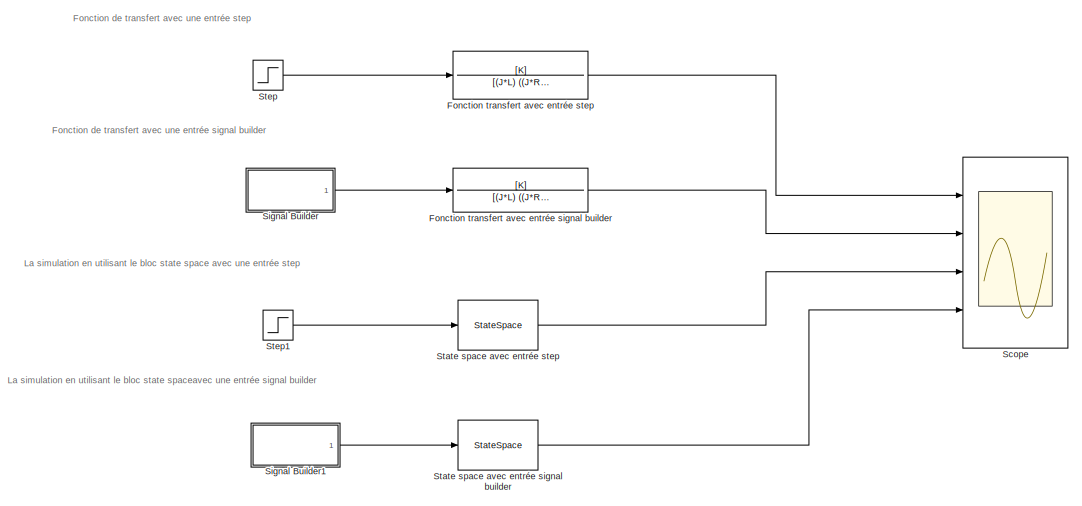
[diagram: root canvas - part 1/2, full width, top band]
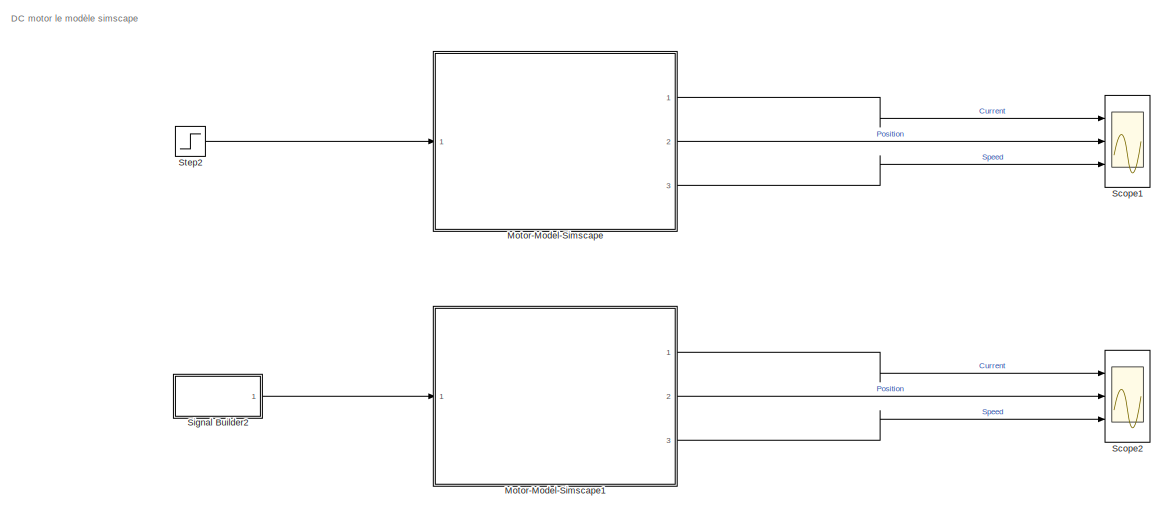
[diagram: root canvas - part 2/2, full width, bottom band]
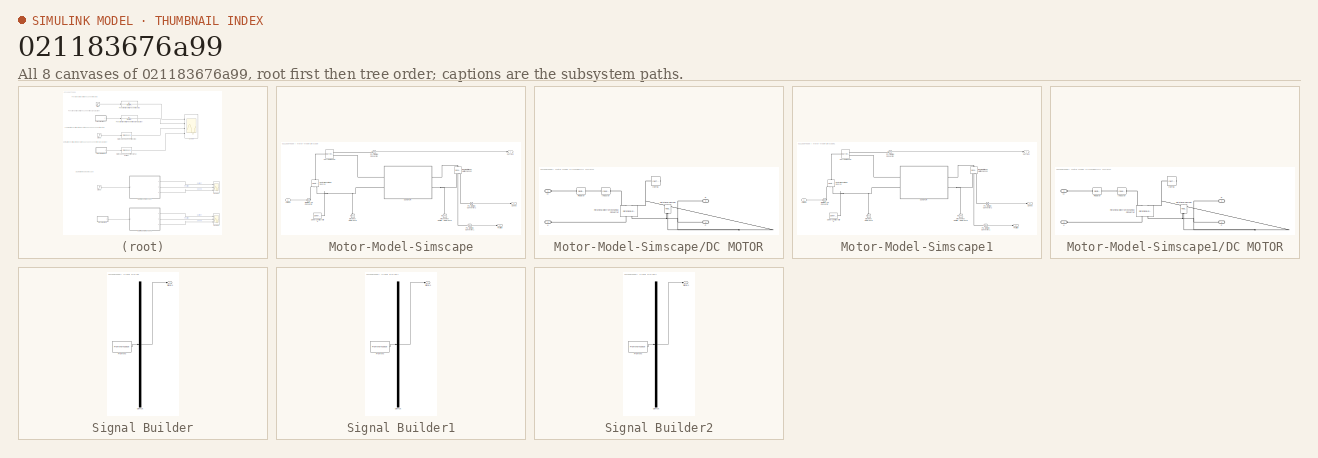
[diagram: thumbnail index - all 8 canvases of the model, root first then tree order]
MODEL slx_021183676a99
KIND model
CONFIG AbsTol = auto
CONFIG EnableMultiTasking = off
CONFIG FixedStep = auto
CONFIG MaxStep = auto
CONFIG MinStep = auto
CONFIG RelTol = 1e-3
CONFIG SampleTimeConstraint = Unconstrained
CONFIG Solver = VariableStepAuto
CONFIG SolverName = VariableStepAuto
CONFIG StartTime = 0.0
CONFIG StopTime = 10.0
BLOCK [TransferFcn] Fonction transfert avec entrée signal builder
  Denominator = [(J*L)  ((J*R)+(b*L))  ((b*R)+(K.^2))]
  Numerator = [K]
BLOCK [TransferFcn] Fonction transfert avec entrée step
  Denominator = [(J*L)  ((J*R)+(b*L))  ((b*R)+(K.^2))]
  Numerator = [K]
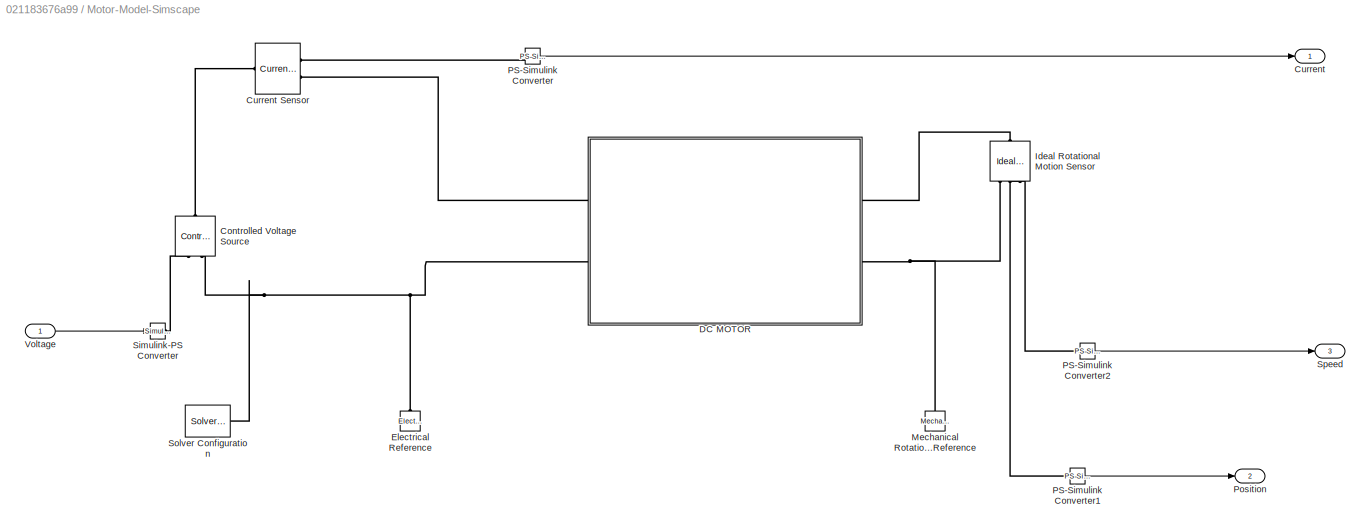
BLOCK [SubSystem] Motor-Model-Simscape
  Ports = [1, 3]
  RequestExecContextInheritance = off
BLOCK [Reference] Motor-Model-Simscape/Controlled Voltage Source  REF=fl_lib/Electrical/Electrical Sources/Controlled Voltage
Source
  NameLocation = right
  Ports = [0, 0, 0, 0, 0, 1, 2]
  SourceBlock = fl_lib/Electrical/Electrical Sources/Controlled Voltage\nSource
  SourceProductBaseCode = SS
  SourceType = Controlled Voltage\nSource
BLOCK [Outport] Motor-Model-Simscape/Current
BLOCK [Reference] Motor-Model-Simscape/Current Sensor  REF=fl_lib/Electrical/Electrical Sensors/Current Sensor
  Ports = [0, 0, 0, 0, 0, 1, 2]
  SourceBlock = fl_lib/Electrical/Electrical Sensors/Current Sensor
  SourceProductBaseCode = SS
  SourceType = Current Sensor
BLOCK [SubSystem] Motor-Model-Simscape/DC MOTOR
  Ports = [0, 0, 0, 0, 0, 2, 2]
  RequestExecContextInheritance = off
BLOCK [PMIOPort] Motor-Model-Simscape/DC MOTOR/C
  Port = 4
  Side = Right
BLOCK [Reference] Motor-Model-Simscape/DC MOTOR/Inductor  REF=fl_lib/Electrical/Electrical Elements/Inductor
  Ports = [0, 0, 0, 0, 0, 1, 1]
  SourceBlock = fl_lib/Electrical/Electrical Elements/Inductor
  SourceProductBaseCode = SS
  SourceType = Inductor
BLOCK [Reference] Motor-Model-Simscape/DC MOTOR/Inertia  REF=fl_lib/Mechanical/Rotational Elements/Inertia
  NameLocation = top
  Ports = [0, 0, 0, 0, 0, 1]
  SourceBlock = fl_lib/Mechanical/Rotational Elements/Inertia
  SourceProductBaseCode = SS
  SourceType = Inertia
BLOCK [PMIOPort] Motor-Model-Simscape/DC MOTOR/R
  Port = 3
  Side = Right
BLOCK [Reference] Motor-Model-Simscape/DC MOTOR/Resistor  REF=fl_lib/Electrical/Electrical Elements/Resistor
  Ports = [0, 0, 0, 0, 0, 1, 1]
  SourceBlock = fl_lib/Electrical/Electrical Elements/Resistor
  SourceProductBaseCode = SS
  SourceType = Resistor
BLOCK [Reference] Motor-Model-Simscape/DC MOTOR/Rotational Damper  REF=fl_lib/Mechanical/Rotational Elements/Rotational Damper
  NameLocation = right
  Ports = [0, 0, 0, 0, 0, 1, 1]
  SourceBlock = fl_lib/Mechanical/Rotational Elements/Rotational Damper
  SourceProductBaseCode = SS
  SourceType = Rotational Damper
BLOCK [Reference] Motor-Model-Simscape/DC MOTOR/Rotational Electromechanical Converter  REF=fl_lib/Electrical/Electrical Elements/Rotational
Electromechanical
Converter
  NameLocation = right
  Ports = [0, 0, 0, 0, 0, 2, 2]
  SourceBlock = fl_lib/Electrical/Electrical Elements/Rotational\nElectromechanical\nConverter
  SourceProductBaseCode = SS
  SourceType = Rotational\nElectromechanical\nConverter
BLOCK [PMIOPort] Motor-Model-Simscape/DC MOTOR/V+
  Side = Left
BLOCK [PMIOPort] Motor-Model-Simscape/DC MOTOR/V-
  Port = 2
  Side = Left
BLOCK [Reference] Motor-Model-Simscape/Electrical Reference  REF=fl_lib/Electrical/Electrical Elements/Electrical Reference
  NameLocation = right
  Ports = [0, 0, 0, 0, 0, 1]
  SourceBlock = fl_lib/Electrical/Electrical Elements/Electrical Reference
  SourceProductBaseCode = SS
  SourceType = Electrical Reference
BLOCK [Reference] Motor-Model-Simscape/Ideal Rotational Motion Sensor  REF=fl_lib/Mechanical/Mechanical Sensors/Ideal Rotational
Motion Sensor
  NameLocation = left
  Ports = [0, 0, 0, 0, 0, 1, 3]
  SourceBlock = fl_lib/Mechanical/Mechanical Sensors/Ideal Rotational\nMotion Sensor
  SourceProductBaseCode = SS
  SourceType = Ideal Rotational\nMotion Sensor
BLOCK [Reference] Motor-Model-Simscape/Mechanical Rotational Reference  REF=fl_lib/Mechanical/Rotational Elements/Mechanical
Rotational Reference
  NameLocation = right
  Ports = [0, 0, 0, 0, 0, 1]
  SourceBlock = fl_lib/Mechanical/Rotational Elements/Mechanical\nRotational Reference
  SourceProductBaseCode = SS
  SourceType = Mechanical\nRotational Reference
BLOCK [Reference] Motor-Model-Simscape/PS-Simulink Converter  REF=nesl_utility/PS-Simulink
Converter
  Ports = [0, 1, 0, 0, 0, 1]
  SourceBlock = nesl_utility/PS-Simulink\nConverter
  SourceProductBaseCode = SS
  SourceType = PS-Simulink\nConverter
BLOCK [Reference] Motor-Model-Simscape/PS-Simulink Converter1  REF=nesl_utility/PS-Simulink
Converter
  Ports = [0, 1, 0, 0, 0, 1]
  SourceBlock = nesl_utility/PS-Simulink\nConverter
  SourceProductBaseCode = SS
  SourceType = PS-Simulink\nConverter
BLOCK [Reference] Motor-Model-Simscape/PS-Simulink Converter2  REF=nesl_utility/PS-Simulink
Converter
  Ports = [0, 1, 0, 0, 0, 1]
  SourceBlock = nesl_utility/PS-Simulink\nConverter
  SourceProductBaseCode = SS
  SourceType = PS-Simulink\nConverter
BLOCK [Outport] Motor-Model-Simscape/Position
  Port = 2
BLOCK [Reference] Motor-Model-Simscape/Simulink-PS Converter  REF=nesl_utility/Simulink-PS
Converter
  Ports = [1, 0, 0, 0, 0, 0, 1]
  SourceBlock = nesl_utility/Simulink-PS\nConverter
  SourceProductBaseCode = SS
  SourceType = Simulink-PS\nConverter
BLOCK [Reference] Motor-Model-Simscape/Solver Configuration  REF=nesl_utility/Solver
Configuration
  Ports = [0, 0, 0, 0, 0, 0, 1]
  SourceBlock = nesl_utility/Solver\nConfiguration
  SourceProductBaseCode = SS
  SourceType = Solver\nConfiguration
BLOCK [Outport] Motor-Model-Simscape/Speed
  Port = 3
BLOCK [Inport] Motor-Model-Simscape/Voltage
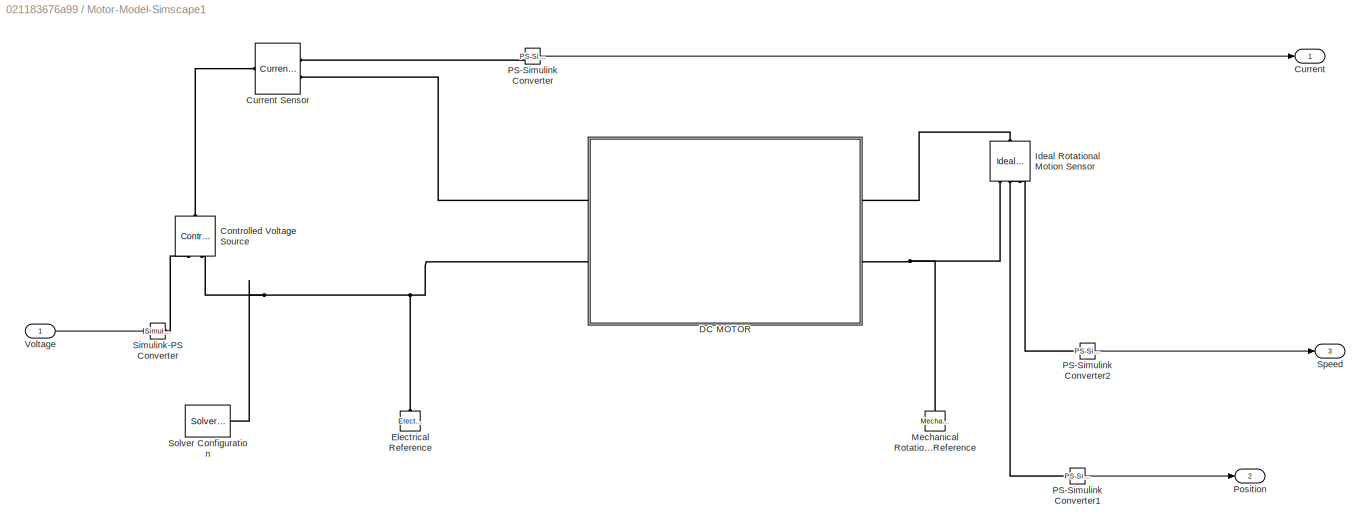
BLOCK [SubSystem] Motor-Model-Simscape1
  Ports = [1, 3]
  RequestExecContextInheritance = off
BLOCK [Reference] Motor-Model-Simscape1/Controlled Voltage Source  REF=fl_lib/Electrical/Electrical Sources/Controlled Voltage
Source
  NameLocation = right
  Ports = [0, 0, 0, 0, 0, 1, 2]
  SourceBlock = fl_lib/Electrical/Electrical Sources/Controlled Voltage\nSource
  SourceProductBaseCode = SS
  SourceType = Controlled Voltage\nSource
BLOCK [Outport] Motor-Model-Simscape1/Current
BLOCK [Reference] Motor-Model-Simscape1/Current Sensor  REF=fl_lib/Electrical/Electrical Sensors/Current Sensor
  Ports = [0, 0, 0, 0, 0, 1, 2]
  SourceBlock = fl_lib/Electrical/Electrical Sensors/Current Sensor
  SourceProductBaseCode = SS
  SourceType = Current Sensor
BLOCK [SubSystem] Motor-Model-Simscape1/DC MOTOR
  Ports = [0, 0, 0, 0, 0, 2, 2]
  RequestExecContextInheritance = off
BLOCK [PMIOPort] Motor-Model-Simscape1/DC MOTOR/C
  Port = 4
  Side = Right
BLOCK [Reference] Motor-Model-Simscape1/DC MOTOR/Inductor  REF=fl_lib/Electrical/Electrical Elements/Inductor
  Ports = [0, 0, 0, 0, 0, 1, 1]
  SourceBlock = fl_lib/Electrical/Electrical Elements/Inductor
  SourceProductBaseCode = SS
  SourceType = Inductor
BLOCK [Reference] Motor-Model-Simscape1/DC MOTOR/Inertia  REF=fl_lib/Mechanical/Rotational Elements/Inertia
  NameLocation = top
  Ports = [0, 0, 0, 0, 0, 1]
  SourceBlock = fl_lib/Mechanical/Rotational Elements/Inertia
  SourceProductBaseCode = SS
  SourceType = Inertia
BLOCK [PMIOPort] Motor-Model-Simscape1/DC MOTOR/R
  Port = 3
  Side = Right
BLOCK [Reference] Motor-Model-Simscape1/DC MOTOR/Resistor  REF=fl_lib/Electrical/Electrical Elements/Resistor
  Ports = [0, 0, 0, 0, 0, 1, 1]
  SourceBlock = fl_lib/Electrical/Electrical Elements/Resistor
  SourceProductBaseCode = SS
  SourceType = Resistor
BLOCK [Reference] Motor-Model-Simscape1/DC MOTOR/Rotational Damper  REF=fl_lib/Mechanical/Rotational Elements/Rotational Damper
  NameLocation = right
  Ports = [0, 0, 0, 0, 0, 1, 1]
  SourceBlock = fl_lib/Mechanical/Rotational Elements/Rotational Damper
  SourceProductBaseCode = SS
  SourceType = Rotational Damper
BLOCK [Reference] Motor-Model-Simscape1/DC MOTOR/Rotational Electromechanical Converter  REF=fl_lib/Electrical/Electrical Elements/Rotational
Electromechanical
Converter
  NameLocation = right
  Ports = [0, 0, 0, 0, 0, 2, 2]
  SourceBlock = fl_lib/Electrical/Electrical Elements/Rotational\nElectromechanical\nConverter
  SourceProductBaseCode = SS
  SourceType = Rotational\nElectromechanical\nConverter
BLOCK [PMIOPort] Motor-Model-Simscape1/DC MOTOR/V+
  Side = Left
BLOCK [PMIOPort] Motor-Model-Simscape1/DC MOTOR/V-
  Port = 2
  Side = Left
BLOCK [Reference] Motor-Model-Simscape1/Electrical Reference  REF=fl_lib/Electrical/Electrical Elements/Electrical Reference
  NameLocation = right
  Ports = [0, 0, 0, 0, 0, 1]
  SourceBlock = fl_lib/Electrical/Electrical Elements/Electrical Reference
  SourceProductBaseCode = SS
  SourceType = Electrical Reference
BLOCK [Reference] Motor-Model-Simscape1/Ideal Rotational Motion Sensor  REF=fl_lib/Mechanical/Mechanical Sensors/Ideal Rotational
Motion Sensor
  NameLocation = left
  Ports = [0, 0, 0, 0, 0, 1, 3]
  SourceBlock = fl_lib/Mechanical/Mechanical Sensors/Ideal Rotational\nMotion Sensor
  SourceProductBaseCode = SS
  SourceType = Ideal Rotational\nMotion Sensor
BLOCK [Reference] Motor-Model-Simscape1/Mechanical Rotational Reference  REF=fl_lib/Mechanical/Rotational Elements/Mechanical
Rotational Reference
  NameLocation = right
  Ports = [0, 0, 0, 0, 0, 1]
  SourceBlock = fl_lib/Mechanical/Rotational Elements/Mechanical\nRotational Reference
  SourceProductBaseCode = SS
  SourceType = Mechanical\nRotational Reference
BLOCK [Reference] Motor-Model-Simscape1/PS-Simulink Converter  REF=nesl_utility/PS-Simulink
Converter
  Ports = [0, 1, 0, 0, 0, 1]
  SourceBlock = nesl_utility/PS-Simulink\nConverter
  SourceProductBaseCode = SS
  SourceType = PS-Simulink\nConverter
BLOCK [Reference] Motor-Model-Simscape1/PS-Simulink Converter1  REF=nesl_utility/PS-Simulink
Converter
  Ports = [0, 1, 0, 0, 0, 1]
  SourceBlock = nesl_utility/PS-Simulink\nConverter
  SourceProductBaseCode = SS
  SourceType = PS-Simulink\nConverter
BLOCK [Reference] Motor-Model-Simscape1/PS-Simulink Converter2  REF=nesl_utility/PS-Simulink
Converter
  Ports = [0, 1, 0, 0, 0, 1]
  SourceBlock = nesl_utility/PS-Simulink\nConverter
  SourceProductBaseCode = SS
  SourceType = PS-Simulink\nConverter
BLOCK [Outport] Motor-Model-Simscape1/Position
  Port = 2
BLOCK [Reference] Motor-Model-Simscape1/Simulink-PS Converter  REF=nesl_utility/Simulink-PS
Converter
  Ports = [1, 0, 0, 0, 0, 0, 1]
  SourceBlock = nesl_utility/Simulink-PS\nConverter
  SourceProductBaseCode = SS
  SourceType = Simulink-PS\nConverter
BLOCK [Reference] Motor-Model-Simscape1/Solver Configuration  REF=nesl_utility/Solver
Configuration
  Ports = [0, 0, 0, 0, 0, 0, 1]
  SourceBlock = nesl_utility/Solver\nConfiguration
  SourceProductBaseCode = SS
  SourceType = Solver\nConfiguration
BLOCK [Outport] Motor-Model-Simscape1/Speed
  Port = 3
BLOCK [Inport] Motor-Model-Simscape1/Voltage
BLOCK [Scope] Scope
  Floating = off
  NumInputPorts = 4
  Ports = [4]
  ScopeSpecificationString = Simulink.scopes.TimeScopeBlockCfg('CurrentConfiguration', extmgr.ConfigurationSet(extmgr.Configuration('Core','General UI',true),extmgr.Configuration('Core','Source UI',true),extmgr.Configuration('Sources','WiredSimulink',true,'DataLoggingVariableName','ScopeData1'),extmgr.Configuration('Visuals','Time Domain',true,'SerializedDisplays',{struct('MinYLimReal','-0.01249','MaxYLimReal','0.11239','YLab...<+3579ch>
BLOCK [Scope] Scope1
  Floating = off
  NumInputPorts = 3
  Ports = [3]
  ScopeSpecificationString = Simulink.scopes.TimeScopeBlockCfg('CurrentConfiguration', extmgr.ConfigurationSet(extmgr.Configuration('Core','General UI',true),extmgr.Configuration('Core','Source UI',true),extmgr.Configuration('Sources','WiredSimulink',true,'DataLoggingVariableName','ScopeData1'),extmgr.Configuration('Visuals','Time Domain',true,'SerializedDisplays',{struct('MinYLimReal','-0.12488','MaxYLimReal','1.12388','YLab...<+1477ch>
BLOCK [Scope] Scope2
  Floating = off
  NumInputPorts = 3
  Ports = [3]
  ScopeSpecificationString = Simulink.scopes.TimeScopeBlockCfg('CurrentConfiguration', extmgr.ConfigurationSet(extmgr.Configuration('Core','General UI',true),extmgr.Configuration('Core','Source UI',true),extmgr.Configuration('Sources','WiredSimulink',true,'DataLoggingVariableName','ScopeData2'),extmgr.Configuration('Visuals','Time Domain',true,'SerializedDisplays',{struct('MinYLimReal','-0.1226','MaxYLimReal','1.10339','YLabe...<+1407ch>
BLOCK [SubSystem] Signal Builder
  ClipboardFcn = sigbuilder_block('clipboard');
  CloseFcn = sigbuilder_block('close');
  ContinueFcn = sigbuilder_block('continue');
  CopyFcn = sigbuilder_block('copy');
  DeleteFcn = sigbuilder_block('delete');
  LoadFcn = sigbuilder_block('load');
  MaskHideContents = on
  ModelCloseFcn = sigbuilder_block('modelClose');
  NameChangeFcn = sigbuilder_block('namechange');
  OpenFcn = sigbuilder_block('open',[437.6 199.2 550.4 400 ]);
  PauseFcn = sigbuilder_block('pause');
  Ports = [0, 1]
  PreSaveFcn = sigbuilder_block('preSave');
  RequestExecContextInheritance = off
  StartFcn = sigbuilder_block('start');
  StopFcn = sigbuilder_block('stop');
  Tag = STV Subsys
BLOCK [Demux] Signal Builder/Demux
  DisplayOption = none
  Outputs = 1
  Ports = [1, 1]
  Tag = STV Demux
BLOCK [FromWorkspace] Signal Builder/FromWs
  Tag = STV FromWs
  VariableName = tuvar
BLOCK [Outport] Signal Builder/Signal 1
  Tag = STV Outport
BLOCK [SubSystem] Signal Builder1
  ClipboardFcn = sigbuilder_block('clipboard');
  CloseFcn = sigbuilder_block('close');
  ContinueFcn = sigbuilder_block('continue');
  CopyFcn = sigbuilder_block('copy');
  DeleteFcn = sigbuilder_block('delete');
  LoadFcn = sigbuilder_block('load');
  MaskHideContents = on
  ModelCloseFcn = sigbuilder_block('modelClose');
  NameChangeFcn = sigbuilder_block('namechange');
  OpenFcn = sigbuilder_block('open',[437.6 199.2 550.4 400 ]);
  PauseFcn = sigbuilder_block('pause');
  Ports = [0, 1]
  PreSaveFcn = sigbuilder_block('preSave');
  RequestExecContextInheritance = off
  StartFcn = sigbuilder_block('start');
  StopFcn = sigbuilder_block('stop');
  Tag = STV Subsys
BLOCK [Demux] Signal Builder1/Demux
  DisplayOption = none
  Outputs = 1
  Ports = [1, 1]
  Tag = STV Demux
BLOCK [FromWorkspace] Signal Builder1/FromWs
  Tag = STV FromWs
  VariableName = tuvar
BLOCK [Outport] Signal Builder1/Signal 1
  Tag = STV Outport
BLOCK [SubSystem] Signal Builder2
  ClipboardFcn = sigbuilder_block('clipboard');
  CloseFcn = sigbuilder_block('close');
  ContinueFcn = sigbuilder_block('continue');
  CopyFcn = sigbuilder_block('copy');
  DeleteFcn = sigbuilder_block('delete');
  LoadFcn = sigbuilder_block('load');
  MaskHideContents = on
  ModelCloseFcn = sigbuilder_block('modelClose');
  NameChangeFcn = sigbuilder_block('namechange');
  OpenFcn = sigbuilder_block('open',[437.6 199.2 550.4 400 ]);
  PauseFcn = sigbuilder_block('pause');
  Ports = [0, 1]
  PreSaveFcn = sigbuilder_block('preSave');
  RequestExecContextInheritance = off
  StartFcn = sigbuilder_block('start');
  StopFcn = sigbuilder_block('stop');
  Tag = STV Subsys
BLOCK [Demux] Signal Builder2/Demux
  DisplayOption = none
  Outputs = 1
  Ports = [1, 1]
  Tag = STV Demux
BLOCK [FromWorkspace] Signal Builder2/FromWs
  Tag = STV FromWs
  VariableName = tuvar
BLOCK [Outport] Signal Builder2/Signal 1
  Tag = STV Outport
BLOCK [StateSpace] State space avec entrée signal builder
  A = A
  B = B
  C = C
  D = 0
  InitialCondition = 0
  Ports = [1, 1]
BLOCK [StateSpace] State space avec entrée step
  A = A
  B = B
  C = C
  D = 0
  InitialCondition = 0
  Ports = [1, 1]
BLOCK [Step] Step
  SampleTime = 0
BLOCK [Step] Step1
  SampleTime = 0
BLOCK [Step] Step2
  SampleTime = 0
ANNOTATION (root): Fonction de transfert avec une entrée signal builder
ANNOTATION (root): Fonction de transfert avec une entrée step
ANNOTATION (root): La simulation en utilisant le bloc state space avec une entrée step
ANNOTATION (root): La simulation en utilisant le bloc state spaceavec une entrée signal builder
ANNOTATION (root): DC motor le modèle simscape
LINE Fonction transfert avec entrée signal builder:1 -> Scope:2
LINE Fonction transfert avec entrée step:1 -> Scope:1
LINE Motor-Model-Simscape/PS-Simulink Converter1:1 -> Motor-Model-Simscape/Position:1
LINE Motor-Model-Simscape/PS-Simulink Converter2:1 -> Motor-Model-Simscape/Speed:1
LINE Motor-Model-Simscape/PS-Simulink Converter:1 -> Motor-Model-Simscape/Current:1
LINE Motor-Model-Simscape/Voltage:1 -> Motor-Model-Simscape/Simulink-PS Converter:1
LINE Motor-Model-Simscape1/PS-Simulink Converter1:1 -> Motor-Model-Simscape1/Position:1
LINE Motor-Model-Simscape1/PS-Simulink Converter2:1 -> Motor-Model-Simscape1/Speed:1
LINE Motor-Model-Simscape1/PS-Simulink Converter:1 -> Motor-Model-Simscape1/Current:1
LINE Motor-Model-Simscape1/Voltage:1 -> Motor-Model-Simscape1/Simulink-PS Converter:1
LINE Motor-Model-Simscape1:1 -> Scope2:1
LINE Motor-Model-Simscape1:2 -> Scope2:2
LINE Motor-Model-Simscape1:3 -> Scope2:3
LINE Motor-Model-Simscape:1 -> Scope1:1
LINE Motor-Model-Simscape:2 -> Scope1:2
LINE Motor-Model-Simscape:3 -> Scope1:3
LINE Signal Builder1:1 -> State space avec entrée signal builder:1
LINE Signal Builder2:1 -> Motor-Model-Simscape1:1
LINE Signal Builder:1 -> Fonction transfert avec entrée signal builder:1
LINE State space avec entrée signal builder:1 -> Scope:4
LINE State space avec entrée step:1 -> Scope:3
LINE Step1:1 -> State space avec entrée step:1
LINE Step2:1 -> Motor-Model-Simscape:1
LINE Step:1 -> Fonction transfert avec entrée step:1
PLINE Motor-Model-Simscape/Controlled Voltage Source:LConn1 -- Motor-Model-Simscape/Current Sensor:LConn1
PLINE Motor-Model-Simscape/Controlled Voltage Source:RConn1 -- Motor-Model-Simscape/Simulink-PS Converter:RConn1
PNET net1: Motor-Model-Simscape/Controlled Voltage Source:RConn2 -- Motor-Model-Simscape/DC MOTOR:LConn2 -- Motor-Model-Simscape/Electrical Reference:LConn1 -- Motor-Model-Simscape/Solver Configuration:RConn1
PLINE Motor-Model-Simscape/Current Sensor:RConn1 -- Motor-Model-Simscape/PS-Simulink Converter:LConn1
PLINE Motor-Model-Simscape/Current Sensor:RConn2 -- Motor-Model-Simscape/DC MOTOR:LConn1
PNET net2: Motor-Model-Simscape/DC MOTOR/C:RConn1 -- Motor-Model-Simscape/DC MOTOR/Rotational Damper:LConn1 -- Motor-Model-Simscape/DC MOTOR/Rotational Electromechanical Converter:RConn2
PLINE Motor-Model-Simscape/DC MOTOR/Inductor:LConn1 -- Motor-Model-Simscape/DC MOTOR/Resistor:RConn1
PLINE Motor-Model-Simscape/DC MOTOR/Inductor:RConn1 -- Motor-Model-Simscape/DC MOTOR/Rotational Electromechanical Converter:LConn1
PNET net3: Motor-Model-Simscape/DC MOTOR/Inertia:LConn1 -- Motor-Model-Simscape/DC MOTOR/R:RConn1 -- Motor-Model-Simscape/DC MOTOR/Rotational Damper:RConn1 -- Motor-Model-Simscape/DC MOTOR/Rotational Electromechanical Converter:LConn2
PLINE Motor-Model-Simscape/DC MOTOR/Resistor:LConn1 -- Motor-Model-Simscape/DC MOTOR/V+:RConn1
PLINE Motor-Model-Simscape/DC MOTOR/Rotational Electromechanical Converter:RConn1 -- Motor-Model-Simscape/DC MOTOR/V-:RConn1
PLINE Motor-Model-Simscape/DC MOTOR:RConn1 -- Motor-Model-Simscape/Ideal Rotational Motion Sensor:LConn1
PNET net4: Motor-Model-Simscape/DC MOTOR:RConn2 -- Motor-Model-Simscape/Ideal Rotational Motion Sensor:RConn1 -- Motor-Model-Simscape/Mechanical Rotational Reference:LConn1
PLINE Motor-Model-Simscape/Ideal Rotational Motion Sensor:RConn2 -- Motor-Model-Simscape/PS-Simulink Converter2:LConn1
PLINE Motor-Model-Simscape/Ideal Rotational Motion Sensor:RConn3 -- Motor-Model-Simscape/PS-Simulink Converter1:LConn1
PLINE Motor-Model-Simscape1/Controlled Voltage Source:LConn1 -- Motor-Model-Simscape1/Current Sensor:LConn1
PLINE Motor-Model-Simscape1/Controlled Voltage Source:RConn1 -- Motor-Model-Simscape1/Simulink-PS Converter:RConn1
PNET net5: Motor-Model-Simscape1/Controlled Voltage Source:RConn2 -- Motor-Model-Simscape1/DC MOTOR:LConn2 -- Motor-Model-Simscape1/Electrical Reference:LConn1 -- Motor-Model-Simscape1/Solver Configuration:RConn1
PLINE Motor-Model-Simscape1/Current Sensor:RConn1 -- Motor-Model-Simscape1/PS-Simulink Converter:LConn1
PLINE Motor-Model-Simscape1/Current Sensor:RConn2 -- Motor-Model-Simscape1/DC MOTOR:LConn1
PNET net6: Motor-Model-Simscape1/DC MOTOR/C:RConn1 -- Motor-Model-Simscape1/DC MOTOR/Rotational Damper:LConn1 -- Motor-Model-Simscape1/DC MOTOR/Rotational Electromechanical Converter:RConn2
PLINE Motor-Model-Simscape1/DC MOTOR/Inductor:LConn1 -- Motor-Model-Simscape1/DC MOTOR/Resistor:RConn1
PLINE Motor-Model-Simscape1/DC MOTOR/Inductor:RConn1 -- Motor-Model-Simscape1/DC MOTOR/Rotational Electromechanical Converter:LConn1
PNET net7: Motor-Model-Simscape1/DC MOTOR/Inertia:LConn1 -- Motor-Model-Simscape1/DC MOTOR/R:RConn1 -- Motor-Model-Simscape1/DC MOTOR/Rotational Damper:RConn1 -- Motor-Model-Simscape1/DC MOTOR/Rotational Electromechanical Converter:LConn2
PLINE Motor-Model-Simscape1/DC MOTOR/Resistor:LConn1 -- Motor-Model-Simscape1/DC MOTOR/V+:RConn1
PLINE Motor-Model-Simscape1/DC MOTOR/Rotational Electromechanical Converter:RConn1 -- Motor-Model-Simscape1/DC MOTOR/V-:RConn1
PLINE Motor-Model-Simscape1/DC MOTOR:RConn1 -- Motor-Model-Simscape1/Ideal Rotational Motion Sensor:LConn1
PNET net8: Motor-Model-Simscape1/DC MOTOR:RConn2 -- Motor-Model-Simscape1/Ideal Rotational Motion Sensor:RConn1 -- Motor-Model-Simscape1/Mechanical Rotational Reference:LConn1
PLINE Motor-Model-Simscape1/Ideal Rotational Motion Sensor:RConn2 -- Motor-Model-Simscape1/PS-Simulink Converter2:LConn1
PLINE Motor-Model-Simscape1/Ideal Rotational Motion Sensor:RConn3 -- Motor-Model-Simscape1/PS-Simulink Converter1:LConn1
note: PNET lines group multi-terminal physical nets as a canonical sorted terminal list (undirected conserving connections); 2-terminal nets keep the pairwise PLINE form
